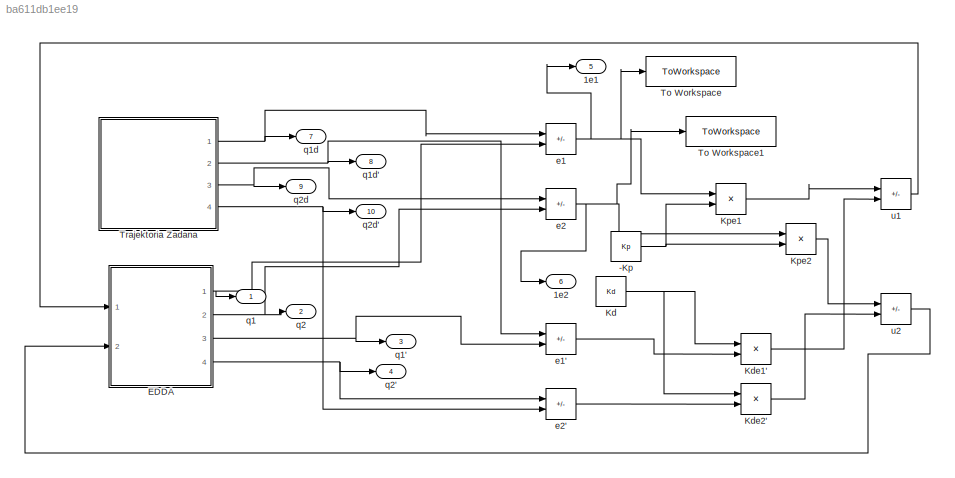
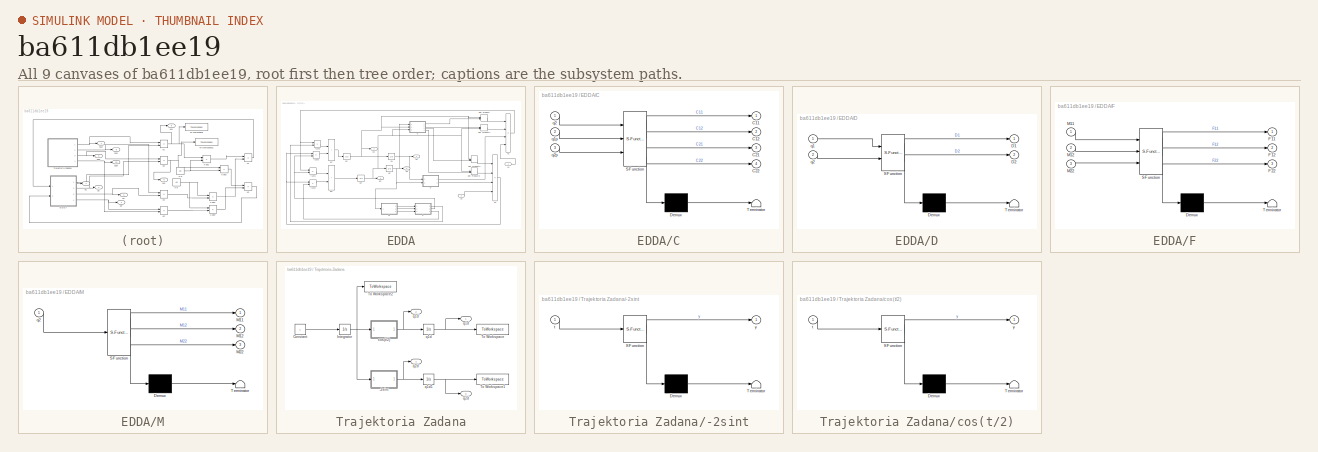
[diagram: thumbnail index - all 9 canvases of the model, root first then tree order]
MODEL slx_ba611db1ee19
KIND model
CONFIG AbsTol = auto
CONFIG EnableMultiTasking = off
CONFIG FixedStep = auto
CONFIG MaxStep = auto
CONFIG MinStep = auto
CONFIG RelTol = 1e-10
CONFIG SampleTimeConstraint = Unconstrained
CONFIG SolverName = ode45
CONFIG StartTime = 0.0
CONFIG StopTime = 100
BLOCK [Sum]  u1
  IconShape = rectangular
  Inputs = --
  Ports = [2, 1]
BLOCK [Sum]  u2
  IconShape = rectangular
  Inputs = --
  Ports = [2, 1]
BLOCK [Constant] -Kp
  Value = Kp
BLOCK [Outport] 1e1
  Port = 5
BLOCK [Outport] 1e2
  Port = 6
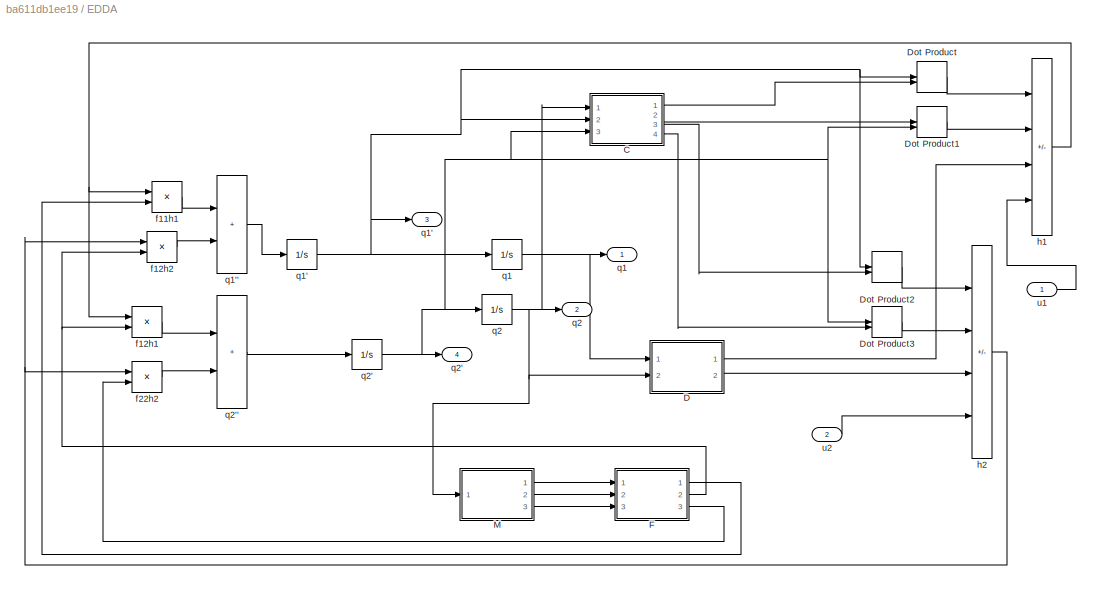
BLOCK [SubSystem] EDDA
  Ports = [2, 4]
  RequestExecContextInheritance = off
BLOCK [Integrator] EDDA/ q1
  Ports = [1, 1]
BLOCK [Integrator] EDDA/ q1'
  Ports = [1, 1]
BLOCK [Integrator] EDDA/ q2
  Ports = [1, 1]
BLOCK [Integrator] EDDA/ q2'
  Ports = [1, 1]
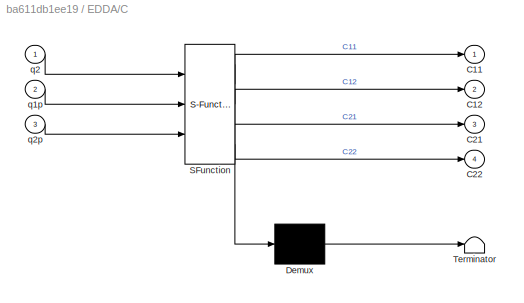
BLOCK [SubSystem] EDDA/C
  ErrorFcn = Stateflow.Translate.translate
  PermitHierarchicalResolution = ExplicitOnly
  Ports = [3, 4]
  RequestExecContextInheritance = off
  SFBlockType = MATLAB Function
  TreatAsAtomicUnit = on
BLOCK [Demux] EDDA/C/ Demux 
  Outputs = 1
  Ports = [1, 1]
BLOCK [S-Function] EDDA/C/ SFunction 
  EnableBusSupport = off
  FunctionName = sf_sfun
  Parameters = Theta4
  PortCounts = [3 5]
  Ports = [3, 5]
  SFcnIsStateOwnerBlock = off
  SFunctionDeploymentMode = off
  Tag = Stateflow S-Function 2
BLOCK [Terminator] EDDA/C/ Terminator 
BLOCK [Outport] EDDA/C/C11
BLOCK [Outport] EDDA/C/C12
  Port = 2
BLOCK [Outport] EDDA/C/C21
  Port = 3
BLOCK [Outport] EDDA/C/C22
  Port = 4
BLOCK [Inport] EDDA/C/q1p
  Port = 2
BLOCK [Inport] EDDA/C/q2
BLOCK [Inport] EDDA/C/q2p
  Port = 3
BLOCK [SubSystem] EDDA/D
  ErrorFcn = Stateflow.Translate.translate
  PermitHierarchicalResolution = ExplicitOnly
  Ports = [2, 2]
  RequestExecContextInheritance = off
  SFBlockType = MATLAB Function
  TreatAsAtomicUnit = on
BLOCK [Demux] EDDA/D/ Demux 
  Outputs = 1
  Ports = [1, 1]
BLOCK [S-Function] EDDA/D/ SFunction 
  EnableBusSupport = off
  FunctionName = sf_sfun
  Parameters = Theta2,Theta4,g
  PortCounts = [2 3]
  Ports = [2, 3]
  SFcnIsStateOwnerBlock = off
  SFunctionDeploymentMode = off
  Tag = Stateflow S-Function 3
BLOCK [Terminator] EDDA/D/ Terminator 
BLOCK [Outport] EDDA/D/D1
BLOCK [Outport] EDDA/D/D2
  Port = 2
BLOCK [Inport] EDDA/D/q1
BLOCK [Inport] EDDA/D/q2
  Port = 2
BLOCK [DotProduct] EDDA/Dot Product
  OutDataTypeStr = Inherit: Inherit via internal rule
BLOCK [DotProduct] EDDA/Dot Product1
  OutDataTypeStr = Inherit: Inherit via internal rule
BLOCK [DotProduct] EDDA/Dot Product2
  OutDataTypeStr = Inherit: Inherit via internal rule
BLOCK [DotProduct] EDDA/Dot Product3
  OutDataTypeStr = Inherit: Inherit via internal rule
BLOCK [SubSystem] EDDA/F
  ErrorFcn = Stateflow.Translate.translate
  PermitHierarchicalResolution = ExplicitOnly
  Ports = [3, 3]
  RequestExecContextInheritance = off
  SFBlockType = MATLAB Function
  TreatAsAtomicUnit = on
BLOCK [Demux] EDDA/F/ Demux 
  Outputs = 1
  Ports = [1, 1]
BLOCK [S-Function] EDDA/F/ SFunction 
  EnableBusSupport = off
  FunctionName = sf_sfun
  PortCounts = [3 4]
  Ports = [3, 4]
  SFcnIsStateOwnerBlock = off
  SFunctionDeploymentMode = off
  Tag = Stateflow S-Function 4
BLOCK [Terminator] EDDA/F/ Terminator 
BLOCK [Outport] EDDA/F/F11
BLOCK [Outport] EDDA/F/F12
  Port = 2
BLOCK [Outport] EDDA/F/F22
  Port = 3
BLOCK [Inport] EDDA/F/M11
BLOCK [Inport] EDDA/F/M12
  Port = 2
BLOCK [Inport] EDDA/F/M22
  Port = 3
BLOCK [SubSystem] EDDA/M
  ErrorFcn = Stateflow.Translate.translate
  PermitHierarchicalResolution = ExplicitOnly
  Ports = [1, 3]
  RequestExecContextInheritance = off
  SFBlockType = MATLAB Function
  TreatAsAtomicUnit = on
BLOCK [Demux] EDDA/M/ Demux 
  Outputs = 1
  Ports = [1, 1]
BLOCK [S-Function] EDDA/M/ SFunction 
  EnableBusSupport = off
  FunctionName = sf_sfun
  Parameters = Theta1,Theta3,Theta4
  PortCounts = [1 4]
  Ports = [1, 4]
  SFcnIsStateOwnerBlock = off
  SFunctionDeploymentMode = off
  Tag = Stateflow S-Function 1
BLOCK [Terminator] EDDA/M/ Terminator 
BLOCK [Outport] EDDA/M/M11
BLOCK [Outport] EDDA/M/M12
  Port = 2
BLOCK [Outport] EDDA/M/M22
  Port = 3
BLOCK [Inport] EDDA/M/q2
BLOCK [Product] EDDA/f11h1
  Ports = [2, 1]
BLOCK [Product] EDDA/f12h1
  Ports = [2, 1]
BLOCK [Product] EDDA/f12h2
  Ports = [2, 1]
BLOCK [Product] EDDA/f22h2
  Ports = [2, 1]
BLOCK [Sum] EDDA/h1
  IconShape = rectangular
  Inputs = ---+
  Ports = [4, 1]
BLOCK [Sum] EDDA/h2
  IconShape = rectangular
  Inputs = ---+
  Ports = [4, 1]
BLOCK [Outport] EDDA/q1
BLOCK [Outport] EDDA/q1'
  Port = 3
BLOCK [Sum] EDDA/q1''
  IconShape = rectangular
  Ports = [2, 1]
BLOCK [Outport] EDDA/q2
  Port = 2
BLOCK [Outport] EDDA/q2'
  Port = 4
BLOCK [Sum] EDDA/q2''
  IconShape = rectangular
  Ports = [2, 1]
BLOCK [Inport] EDDA/u1
BLOCK [Inport] EDDA/u2
  Port = 2
BLOCK [Constant] Kd
  Value = Kd
BLOCK [Product] Kde1'
  Ports = [2, 1]
BLOCK [Product] Kde2'
  Ports = [2, 1]
BLOCK [Product] Kpe1
  Ports = [2, 1]
BLOCK [Product] Kpe2
  Ports = [2, 1]
BLOCK [ToWorkspace] To Workspace
  FixptAsFi = on
  MaxDataPoints = inf
  Ports = [1]
  SampleTime = -1
  VariableName = e1
BLOCK [ToWorkspace] To Workspace1
  FixptAsFi = on
  MaxDataPoints = inf
  Ports = [1]
  SampleTime = -1
  VariableName = e2
BLOCK [SubSystem] Trajektoria Zadana
  Ports = [0, 4]
  RequestExecContextInheritance = off
BLOCK [Integrator] Trajektoria Zadana/ q1d
  Ports = [1, 1]
BLOCK [Integrator] Trajektoria Zadana/ q1d1
  InitialCondition = 2
  Ports = [1, 1]
BLOCK [SubSystem] Trajektoria Zadana/-2sint
  ErrorFcn = Stateflow.Translate.translate
  PermitHierarchicalResolution = ExplicitOnly
  Ports = [1, 1]
  RequestExecContextInheritance = off
  SFBlockType = MATLAB Function
  TreatAsAtomicUnit = on
BLOCK [Demux] Trajektoria Zadana/-2sint/ Demux 
  Outputs = 1
  Ports = [1, 1]
BLOCK [S-Function] Trajektoria Zadana/-2sint/ SFunction 
  EnableBusSupport = off
  FunctionName = sf_sfun
  PortCounts = [1 2]
  Ports = [1, 2]
  SFcnIsStateOwnerBlock = off
  SFunctionDeploymentMode = off
  Tag = Stateflow S-Function 6
BLOCK [Terminator] Trajektoria Zadana/-2sint/ Terminator 
BLOCK [Inport] Trajektoria Zadana/-2sint/t
BLOCK [Outport] Trajektoria Zadana/-2sint/y
BLOCK [Constant] Trajektoria Zadana/Constant
BLOCK [Integrator] Trajektoria Zadana/Integrator
  Ports = [1, 1]
BLOCK [ToWorkspace] Trajektoria Zadana/To Workspace
  FixptAsFi = on
  MaxDataPoints = inf
  Ports = [1]
  SampleTime = -1
  VariableName = q1ds
BLOCK [ToWorkspace] Trajektoria Zadana/To Workspace1
  FixptAsFi = on
  MaxDataPoints = inf
  Ports = [1]
  SampleTime = -1
  VariableName = q2ds
BLOCK [ToWorkspace] Trajektoria Zadana/To Workspace2
  FixptAsFi = on
  MaxDataPoints = inf
  Ports = [1]
  SampleTime = -1
  VariableName = t
BLOCK [SubSystem] Trajektoria Zadana/cos(t//2)
  ErrorFcn = Stateflow.Translate.translate
  PermitHierarchicalResolution = ExplicitOnly
  Ports = [1, 1]
  RequestExecContextInheritance = off
  SFBlockType = MATLAB Function
  TreatAsAtomicUnit = on
BLOCK [Demux] Trajektoria Zadana/cos(t//2)/ Demux 
  Outputs = 1
  Ports = [1, 1]
BLOCK [S-Function] Trajektoria Zadana/cos(t//2)/ SFunction 
  EnableBusSupport = off
  FunctionName = sf_sfun
  PortCounts = [1 2]
  Ports = [1, 2]
  SFcnIsStateOwnerBlock = off
  SFunctionDeploymentMode = off
  Tag = Stateflow S-Function 5
BLOCK [Terminator] Trajektoria Zadana/cos(t//2)/ Terminator 
BLOCK [Inport] Trajektoria Zadana/cos(t//2)/t
BLOCK [Outport] Trajektoria Zadana/cos(t//2)/y
BLOCK [Outport] Trajektoria Zadana/q1d
BLOCK [Outport] Trajektoria Zadana/q1d'
  Port = 2
BLOCK [Outport] Trajektoria Zadana/q2d
  Port = 3
BLOCK [Outport] Trajektoria Zadana/q2d'
  Port = 4
BLOCK [Sum] e1
  IconShape = rectangular
  Inputs = -+
  Ports = [2, 1]
BLOCK [Sum] e1'
  IconShape = rectangular
  Inputs = -+
  Ports = [2, 1]
BLOCK [Sum] e2
  IconShape = rectangular
  Inputs = -+
  Ports = [2, 1]
BLOCK [Sum] e2'
  IconShape = rectangular
  Inputs = +-
  Ports = [2, 1]
BLOCK [Outport] q1
BLOCK [Outport] q1'
  Port = 3
BLOCK [Outport] q1d
  Port = 7
BLOCK [Outport] q1d'
  Port = 8
BLOCK [Outport] q2
  Port = 2
BLOCK [Outport] q2'
  Port = 4
BLOCK [Outport] q2d
  Port = 9
BLOCK [Outport] q2d'
  Port = 10
LINE  u1:1 -> EDDA:1
LINE  u2:1 -> EDDA:2
NET -Kp:1 -> Kpe1:2, Kpe2:2
NET EDDA/ q1':1 -> EDDA/ q1:1, EDDA/C:2, EDDA/Dot Product2:1, EDDA/Dot Product:1, EDDA/q1':1
NET EDDA/ q1:1 -> EDDA/D:1, EDDA/q1:1
NET EDDA/ q2':1 -> EDDA/ q2:1, EDDA/C:3, EDDA/Dot Product1:2, EDDA/Dot Product3:1, EDDA/q2':1
NET EDDA/ q2:1 -> EDDA/C:1, EDDA/D:2, EDDA/M:1, EDDA/q2:1
LINE EDDA/C:1 -> EDDA/Dot Product:2
LINE EDDA/C:2 -> EDDA/Dot Product1:1
LINE EDDA/C:3 -> EDDA/Dot Product2:2
LINE EDDA/C:4 -> EDDA/Dot Product3:2
LINE EDDA/D:1 -> EDDA/h1:3
LINE EDDA/D:2 -> EDDA/h2:3
LINE EDDA/Dot Product1:1 -> EDDA/h1:2
LINE EDDA/Dot Product2:1 -> EDDA/h2:1
LINE EDDA/Dot Product3:1 -> EDDA/h2:2
LINE EDDA/Dot Product:1 -> EDDA/h1:1
LINE EDDA/F:1 -> EDDA/f11h1:2
NET EDDA/F:2 -> EDDA/f12h1:2, EDDA/f12h2:2
LINE EDDA/F:3 -> EDDA/f22h2:2
LINE EDDA/M:1 -> EDDA/F:1
LINE EDDA/M:2 -> EDDA/F:2
LINE EDDA/M:3 -> EDDA/F:3
LINE EDDA/f11h1:1 -> EDDA/q1'':1
LINE EDDA/f12h1:1 -> EDDA/q2'':1
LINE EDDA/f12h2:1 -> EDDA/q1'':2
LINE EDDA/f22h2:1 -> EDDA/q2'':2
NET EDDA/h1:1 -> EDDA/f11h1:1, EDDA/f12h1:1
NET EDDA/h2:1 -> EDDA/f12h2:1, EDDA/f22h2:1
LINE EDDA/q1'':1 -> EDDA/ q1':1
LINE EDDA/q2'':1 -> EDDA/ q2':1
LINE EDDA/u1:1 -> EDDA/h1:4
LINE EDDA/u2:1 -> EDDA/h2:4
NET EDDA:1 -> e1:2, q1:1
NET EDDA:2 -> e2:2, q2:1
NET EDDA:3 -> e1':2, q1':1
NET EDDA:4 -> e2':1, q2':1
NET Kd:1 -> Kde1':1, Kde2':1
LINE Kde1':1 ->  u1:2
LINE Kde2':1 ->  u2:2
LINE Kpe1:1 ->  u1:1
LINE Kpe2:1 ->  u2:1
NET Trajektoria Zadana/ q1d1:1 -> Trajektoria Zadana/To Workspace1:1, Trajektoria Zadana/q2d:1
NET Trajektoria Zadana/ q1d:1 -> Trajektoria Zadana/To Workspace:1, Trajektoria Zadana/q1d:1
NET Trajektoria Zadana/-2sint:1 -> Trajektoria Zadana/ q1d1:1, Trajektoria Zadana/q2d':1
LINE Trajektoria Zadana/Constant:1 -> Trajektoria Zadana/Integrator:1
NET Trajektoria Zadana/Integrator:1 -> Trajektoria Zadana/-2sint:1, Trajektoria Zadana/To Workspace2:1, Trajektoria Zadana/cos(t//2):1
NET Trajektoria Zadana/cos(t//2):1 -> Trajektoria Zadana/ q1d:1, Trajektoria Zadana/q1d':1
NET Trajektoria Zadana:1 -> e1:1, q1d:1
NET Trajektoria Zadana:2 -> e1':1, q1d':1
NET Trajektoria Zadana:3 -> e2:1, q2d:1
NET Trajektoria Zadana:4 -> e2':2, q2d':1
LINE e1':1 -> Kde1':2
NET e1:1 -> 1e1:1, Kpe1:1, To Workspace:1
LINE e2':1 -> Kde2':2
NET e2:1 -> 1e2:1, Kpe2:1, To Workspace1:1
note: NET lines group one-source signal fan-out (src -> all destinations, sorted); 1:1 wires keep LINE
CHART EDDA/M states=1 transitions=1
  STATE_LABEL 'eML_blk_kernel()'
  STATE_LABEL 'SCRIPT:\nfunction [M11, M12,  M22]= fcn(q2, Theta1,  Theta3, Theta4)\n\nM11=Theta1+0.6*Theta4*cos(q2);\nM12=Theta3+0.3*Theta4*cos(q2);\n%M21=Theta3+0.3*Theta4*cos(q2);\nM22=Theta3;\n'
CHART EDDA/C states=1 transitions=1
  STATE_LABEL 'eML_blk_kernel()'
  STATE_LABEL 'SCRIPT:\nfunction [C11,C12,C21,C22]= fcn(q2 ,q1p  ,q2p, Theta4)\na=0.3*Theta4*sin(q2);\nC11=-q2p*a;\nC12=-(q1p+q2p)*a;\nC21=q1p*a;\nC22=0*a;\n'
CHART EDDA/D states=1 transitions=1
  STATE_LABEL 'eML_blk_kernel()'
  STATE_LABEL 'SCRIPT:\nfunction [D1, D2]= fcn(q1, q2, g, Theta4, Theta2)\n\nD1=Theta2*cos(q1)+Theta4*cos(q1+q2)*g;\nD2=Theta4*cos(q1+q2)*g;\n'
CHART EDDA/F states=1 transitions=1
  STATE_LABEL 'eML_blk_kernel()'
  STATE_LABEL 'SCRIPT:\nfunction [F11, F12,  F22]= fcn(M11, M12,  M22)\n\nDet=M11*M22-M12*M12;\nF11=M22/Det;\nF12=-M12/Det;\nF22=M11/Det;\n'
CHART Trajektoria Zadana/cos(t//2) states=1 transitions=1
  STATE_LABEL 'eML_blk_kernel()'
  STATE_LABEL 'SCRIPT:\nfunction y = fcn(t)\n\ny = cos(t/2);\n'
CHART Trajektoria Zadana/-2sint states=1 transitions=1
  STATE_LABEL 'eML_blk_kernel()'
  STATE_LABEL 'SCRIPT:\nfunction y = fcn(t)\n\ny = -2*sin(t);\n'
CHART  states=0 transitions=0
CHART  states=0 transitions=0
CHART  states=0 transitions=0
CHART  states=0 transitions=0
CHART  states=0 transitions=0
CHART  states=0 transitions=0
